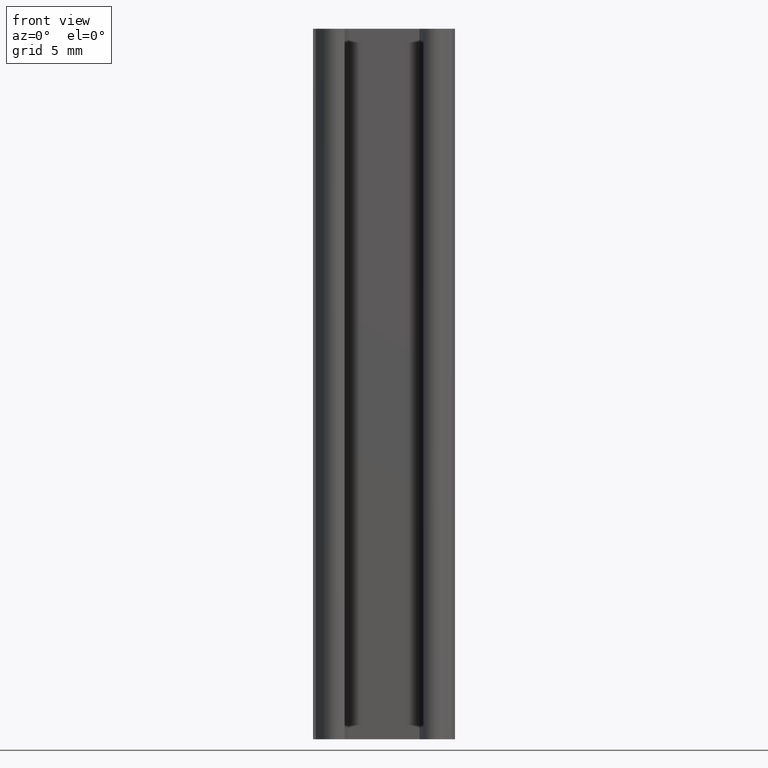
[diagram: clean part render]
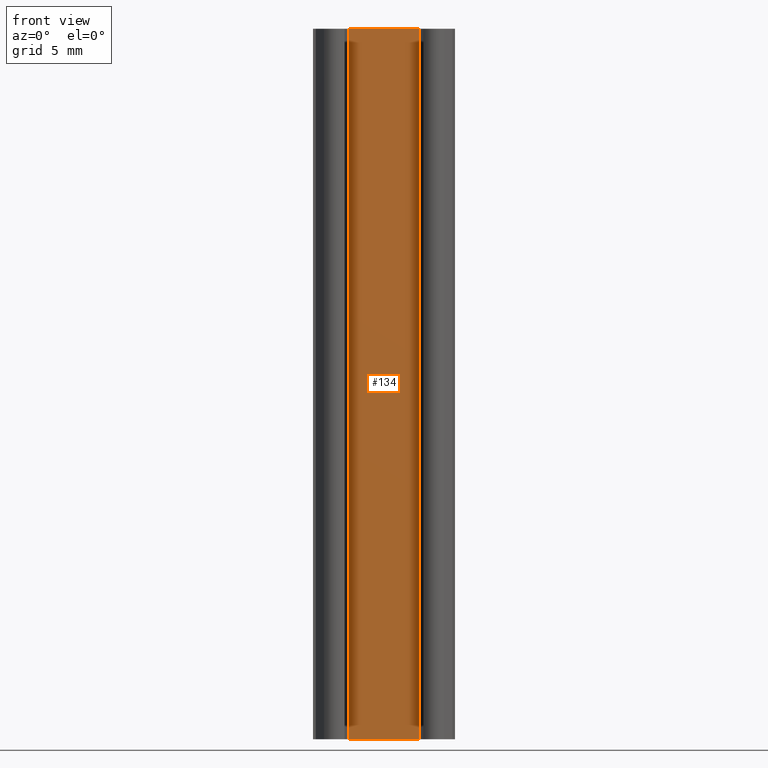
[diagram: same view with one face highlighted and labeled with its STEP entity id]
A machine part, front view. The second image highlights one B-rep face of the part: STEP entity #134.
In plain terms, the highlighted planar face has unit normal (0, 1, 0).
Its self-contained STEP definition (entity closure, byte-faithful):
#19 = CARTESIAN_POINT ( 'NONE',  ( 1.463294687006839500, 5.499999998929228100, -8.673617379884035500E-016 ) ) ;
#30 = CARTESIAN_POINT ( 'NONE',  ( 6.463294684993158500, 5.499999998929228100, 0.0000000000000000000 ) ) ;
#43 = CARTESIAN_POINT ( 'NONE',  ( 6.463294686178134200, 5.499999998997998900, 50.00000000000000000 ) ) ;
#48 = CARTESIAN_POINT ( 'NONE',  ( 1.463294685821866300, 5.499999998997998900, 50.00000000000000000 ) ) ;
#79 = DIRECTION ( 'NONE',  ( -1.000000000000000000, 0.0000000000000000000, 0.0000000000000000000 ) ) ;
#80 = CARTESIAN_POINT ( 'NONE',  ( 3.963294685999999800, 5.499999997995998600, 0.0000000000000000000 ) ) ;
#81 = DIRECTION ( 'NONE',  ( -0.0000000000000000000, -0.0000000000000000000, -1.000000000000000000 ) ) ;
#82 = CARTESIAN_POINT ( 'NONE',  ( 1.463294685999999600, 5.500000000000000000, 25.00000000000000000 ) ) ;
#83 = DIRECTION ( 'NONE',  ( -1.000000000000000000, 0.0000000000000000000, 0.0000000000000000000 ) ) ;
#84 = CARTESIAN_POINT ( 'NONE',  ( 3.963294685999999800, 5.499999997995998600, 50.00000000000000000 ) ) ;
#107 = DIRECTION ( 'NONE',  ( -0.0000000000000000000, -0.0000000000000000000, -1.000000000000000000 ) ) ;
#108 = CARTESIAN_POINT ( 'NONE',  ( 6.463294686000000200, 5.500000000000000000, 25.00000000000000000 ) ) ;
#134 = ADVANCED_FACE ( 'NONE', ( #470 ), #527, .F. ) ;
#154 = EDGE_CURVE ( 'NONE', #214, #192, #246, .T. ) ;
#169 = EDGE_CURVE ( 'NONE', #214, #220, #326, .T. ) ;
#170 = EDGE_CURVE ( 'NONE', #220, #193, #276, .T. ) ;
#171 = EDGE_CURVE ( 'NONE', #192, #193, #277, .T. ) ;
#192 = VERTEX_POINT ( 'NONE', #30 ) ;
#193 = VERTEX_POINT ( 'NONE', #19 ) ;
#214 = VERTEX_POINT ( 'NONE', #43 ) ;
#220 = VERTEX_POINT ( 'NONE', #48 ) ;
#246 = LINE ( 'NONE', #108, #344 ) ;
#276 = LINE ( 'NONE', #82, #285 ) ;
#277 = LINE ( 'NONE', #80, #278 ) ;
#278 = VECTOR ( 'NONE', #79, 1000.000000000000000 ) ;
#285 = VECTOR ( 'NONE', #81, 1000.000000000000000 ) ;
#326 = LINE ( 'NONE', #84, #327 ) ;
#327 = VECTOR ( 'NONE', #83, 1000.000000000000000 ) ;
#344 = VECTOR ( 'NONE', #107, 1000.000000000000000 ) ;
#395 = EDGE_LOOP ( 'NONE', ( #450, #447, #449, #442 ) ) ;
#442 = ORIENTED_EDGE ( 'NONE', *, *, #171, .F. ) ;
#447 = ORIENTED_EDGE ( 'NONE', *, *, #169, .T. ) ;
#449 = ORIENTED_EDGE ( 'NONE', *, *, #170, .T. ) ;
#450 = ORIENTED_EDGE ( 'NONE', *, *, #154, .F. ) ;
#470 = FACE_OUTER_BOUND ( 'NONE', #395, .T. ) ;
#508 = AXIS2_PLACEMENT_3D ( 'NONE', #526, #533, #534 ) ;
#526 = CARTESIAN_POINT ( 'NONE',  ( 1.463294685999999600, 5.500000000000000000, 0.0000000000000000000 ) ) ;
#527 = PLANE ( 'NONE',  #508 ) ;
#533 = DIRECTION ( 'NONE',  ( 0.0000000000000000000, 1.000000000000000000, 0.0000000000000000000 ) ) ;
#534 = DIRECTION ( 'NONE',  ( 0.0000000000000000000, 0.0000000000000000000, 1.000000000000000000 ) ) ;